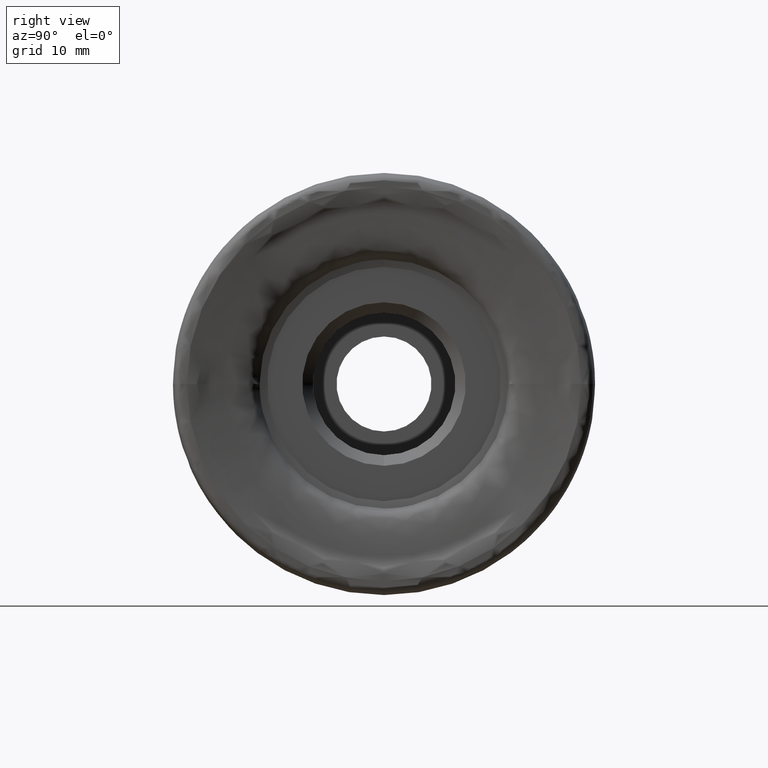
[diagram: clean part render]
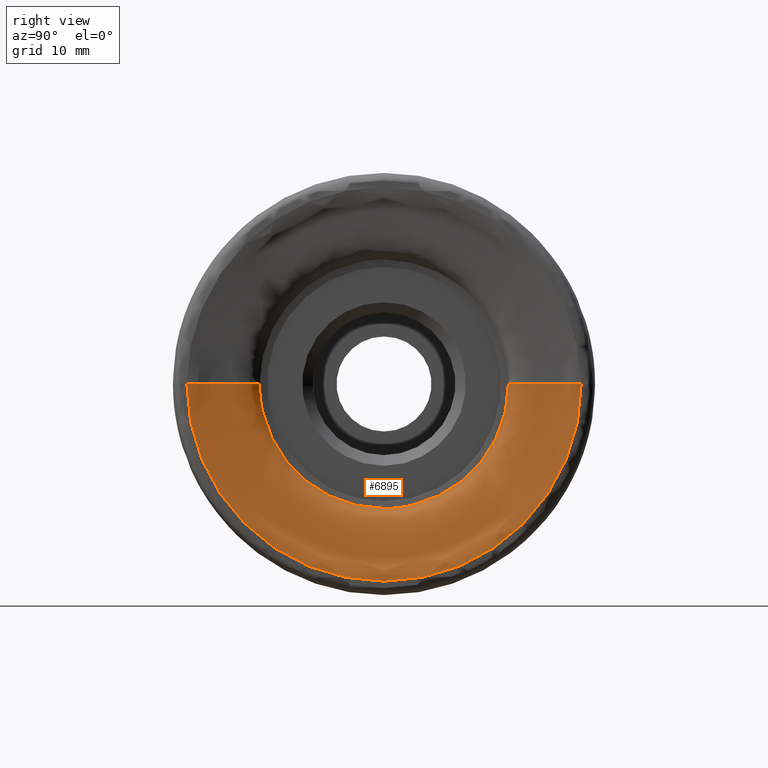
[diagram: same view with one face highlighted and labeled with its STEP entity id]
A machine part, right view. The second image highlights one B-rep face of the part: STEP entity #6895.
In plain terms, the highlighted face is a freeform B-spline surface patch.
Its self-contained STEP definition (entity closure, byte-faithful):
#1 = CARTESIAN_POINT ( 'NONE',  ( -1.233591198673778200, -11.79337000552588500, 0.0000000000000000000 ) ) ;
#4 = CARTESIAN_POINT ( 'NONE',  ( -1.233591198675447800, -11.55626464559019700, -2.352939337967846300 ) ) ;
#172 = B_SPLINE_CURVE_WITH_KNOTS ( 'NONE', 3,
 ( #2905, #2914, #2919, #2920 ),
 .UNSPECIFIED., .F., .F.,
 ( 4, 4 ),
 ( 1.309330234591956300E-016, 0.0002799919832534690400 ),
 .UNSPECIFIED. ) ;
#192 = B_SPLINE_CURVE_WITH_KNOTS ( 'NONE', 3,
 ( #2793, #2788, #2797, #2798, #2799, #2800, #2801, #2802, #2803, #2804, #2805, #2806, #2807, #2808, #2809, #2810, #2811, #2812, #2813, #2814, #2815, #2816, #2817, #2818, #2819, #2820, #2821, #2822, #2823, #2824, #2825, #2826, #2827, #2828, #2829, #2830, #2831, #2832, #2833, #2834, #2835, #2836, #2837, #2838 ),
 .UNSPECIFIED., .F., .F.,
 ( 4, 3, 1, 1, 3, 1, 1, 3, 1, 1, 3, 1, 3, 1, 1, 3, 1, 1, 3, 1, 1, 3, 3, 4 ),
 ( 0.4999999999999998900, 0.5182963854528769300, 0.5197493595014368600, 0.5212023335499969000, 0.5226553075985568300, 0.5234477109062720700, 0.5242401142139873100, 0.5250325175217024400, 0.5256676173556689100, 0.5263027171896352800, 0.5269378170236017600, 0.5311430455843155800, 0.5353492060212637900, 0.5391031500490097700, 0.5428570940767558600, 0.5466110381045018500, 0.5530631472735334500, 0.5632031253263225500, 0.5733431211058310800, 0.5830522591456142000, 0.5927613971853974400, 0.6024705352251805700, 0.6591189726774852000, 0.7575664549078574600 ),
 .UNSPECIFIED. ) ;
#205 = B_SPLINE_CURVE_WITH_KNOTS ( 'NONE', 3,
 ( #7380, #7381, #7386, #7387 ),
 .UNSPECIFIED., .F., .F.,
 ( 4, 4 ),
 ( 1.604361330255176400E-016, 0.0002799919832534824300 ),
 .UNSPECIFIED. ) ;
#259 =( BOUNDED_SURFACE ( )  B_SPLINE_SURFACE ( 3, 3, ( 
 ( #808, #816, #817, #818 ),
 ( #819, #820, #821, #822 ),
 ( #823, #824, #825, #826 ),
 ( #827, #828, #829, #830 ),
 ( #831, #832, #833, #834 ),
 ( #835, #836, #837, #838 ),
 ( #839, #840, #841, #842 ),
 ( #843, #844, #845, #846 ),
 ( #847, #848, #849, #850 ),
 ( #851, #852, #853, #854 ),
 ( #855, #856, #857, #858 ),
 ( #859, #860, #861, #862 ),
 ( #863, #864, #865, #866 ),
 ( #867, #868, #869, #870 ),
 ( #871, #872, #873, #874 ),
 ( #875, #876, #877, #878 ),
 ( #879, #880, #881, #882 ),
 ( #883, #884, #885, #886 ),
 ( #887, #888, #889, #3350 ),
 ( #890, #891, #892, #893 ),
 ( #894, #895, #896, #897 ),
 ( #898, #899, #900, #901 ),
 ( #902, #903, #904, #905 ),
 ( #906, #907, #908, #909 ),
 ( #910, #911, #912, #913 ),
 ( #914, #915, #916, #917 ),
 ( #918, #919, #920, #921 ),
 ( #922, #923, #924, #925 ),
 ( #926, #927, #928, #929 ),
 ( #930, #931, #932, #933 ),
 ( #934, #935, #936, #937 ),
 ( #938, #939, #940, #941 ),
 ( #942, #943, #944, #945 ),
 ( #946, #947, #948, #949 ),
 ( #950, #951, #952, #953 ),
 ( #954, #955, #956, #957 ),
 ( #958, #959, #960, #961 ),
 ( #962, #963, #964, #965 ),
 ( #966, #967, #968, #969 ),
 ( #970, #971, #972, #973 ),
 ( #974, #975, #976, #977 ),
 ( #978, #979, #980, #981 ),
 ( #982, #983, #984, #985 ),
 ( #986, #987, #988, #989 ) ),
 .UNSPECIFIED., .F., .F., .T. ) 
 B_SPLINE_SURFACE_WITH_KNOTS ( ( 4, 3, 1, 1, 3, 1, 1, 3, 1, 1, 3, 1, 3, 1, 1, 3, 1, 1, 3, 1, 1, 3, 3, 4 ),
 ( 4, 4 ),
 ( 0.5000000000000000000, 0.5182963854528769300, 0.5197493595014368600, 0.5212023335499969000, 0.5226553075985568300, 0.5234477109062720700, 0.5242401142139873100, 0.5250325175217024400, 0.5256676173556689100, 0.5263027171896352800, 0.5269378170236017600, 0.5311430455843155800, 0.5353492060212637900, 0.5391031500490097700, 0.5428570940767558600, 0.5466110381045018500, 0.5530631472735334500, 0.5632031253263225500, 0.5733431211058310800, 0.5830522591456142000, 0.5927613971853974400, 0.6024705352251805700, 0.6591189726774852000, 0.7665745728667404700 ),
 ( 0.0000000000000000000, 1.000000000000000000 ),
 .UNSPECIFIED. ) 
 GEOMETRIC_REPRESENTATION_ITEM ( )  RATIONAL_B_SPLINE_SURFACE ( (
 ( 1.000000000000000000, 0.3333333333333334300, 0.3333333333333334300, 1.000000000000000000),
 ( 1.000000000000000000, 0.3333333333333334300, 0.3333333333333334300, 1.000000000000000000),
 ( 1.000000000000000000, 0.3333333333333334300, 0.3333333333333334300, 1.000000000000000000),
 ( 1.000000000000000000, 0.3333333333333334300, 0.3333333333333334300, 1.000000000000000000),
 ( 1.000000000000000000, 0.3333333333333334300, 0.3333333333333334300, 1.000000000000000000),
 ( 1.000000000000000000, 0.3333333333333334300, 0.3333333333333334300, 1.000000000000000000),
 ( 1.000000000000000000, 0.3333333333333334300, 0.3333333333333334300, 1.000000000000000000),
 ( 1.000000000000000000, 0.3333333333333334300, 0.3333333333333334300, 1.000000000000000000),
 ( 1.000000000000000000, 0.3333333333333334300, 0.3333333333333334300, 1.000000000000000000),
 ( 1.000000000000000000, 0.3333333333333334300, 0.3333333333333334300, 1.000000000000000000),
 ( 1.000000000000000000, 0.3333333333333334300, 0.3333333333333334300, 1.000000000000000000),
 ( 1.000000000000000000, 0.3333333333333334300, 0.3333333333333334300, 1.000000000000000000),
 ( 1.000000000000000000, 0.3333333333333334300, 0.3333333333333334300, 1.000000000000000000),
 ( 1.000000000000000000, 0.3333333333333334300, 0.3333333333333334300, 1.000000000000000000),
 ( 1.000000000000000000, 0.3333333333333334300, 0.3333333333333334300, 1.000000000000000000),
 ( 1.000000000000000000, 0.3333333333333334300, 0.3333333333333334300, 1.000000000000000000),
 ( 1.000000000000000000, 0.3333333333333334300, 0.3333333333333334300, 1.000000000000000000),
 ( 1.000000000000000000, 0.3333333333333334300, 0.3333333333333334300, 1.000000000000000000),
 ( 1.000000000000000000, 0.3333333333333334300, 0.3333333333333334300, 1.000000000000000000),
 ( 1.000000000000000000, 0.3333333333333334300, 0.3333333333333334300, 1.000000000000000000),
 ( 1.000000000000000000, 0.3333333333333334300, 0.3333333333333334300, 1.000000000000000000),
 ( 1.000000000000000000, 0.3333333333333334300, 0.3333333333333334300, 1.000000000000000000),
 ( 1.000000000000000000, 0.3333333333333334300, 0.3333333333333334300, 1.000000000000000000),
 ( 1.000000000000000000, 0.3333333333333334300, 0.3333333333333334300, 1.000000000000000000),
 ( 1.000000000000000000, 0.3333333333333334300, 0.3333333333333334300, 1.000000000000000000),
 ( 1.000000000000000000, 0.3333333333333334300, 0.3333333333333334300, 1.000000000000000000),
 ( 1.000000000000000000, 0.3333333333333334300, 0.3333333333333334300, 1.000000000000000000),
 ( 1.000000000000000000, 0.3333333333333334300, 0.3333333333333334300, 1.000000000000000000),
 ( 1.000000000000000000, 0.3333333333333334300, 0.3333333333333334300, 1.000000000000000000),
 ( 1.000000000000000000, 0.3333333333333334300, 0.3333333333333334300, 1.000000000000000000),
 ( 1.000000000000000000, 0.3333333333333334300, 0.3333333333333334300, 1.000000000000000000),
 ( 1.000000000000000000, 0.3333333333333334300, 0.3333333333333334300, 1.000000000000000000),
 ( 1.000000000000000000, 0.3333333333333334300, 0.3333333333333334300, 1.000000000000000000),
 ( 1.000000000000000000, 0.3333333333333334300, 0.3333333333333334300, 1.000000000000000000),
 ( 1.000000000000000000, 0.3333333333333334300, 0.3333333333333334300, 1.000000000000000000),
 ( 1.000000000000000000, 0.3333333333333334300, 0.3333333333333334300, 1.000000000000000000),
 ( 1.000000000000000000, 0.3333333333333334300, 0.3333333333333334300, 1.000000000000000000),
 ( 1.000000000000000000, 0.3333333333333334300, 0.3333333333333334300, 1.000000000000000000),
 ( 1.000000000000000000, 0.3333333333333334300, 0.3333333333333334300, 1.000000000000000000),
 ( 1.000000000000000000, 0.3333333333333334300, 0.3333333333333334300, 1.000000000000000000),
 ( 1.000000000000000000, 0.3333333333333334300, 0.3333333333333334300, 1.000000000000000000),
 ( 1.000000000000000000, 0.3333333333333334300, 0.3333333333333334300, 1.000000000000000000),
 ( 1.000000000000000000, 0.3333333333333334300, 0.3333333333333334300, 1.000000000000000000),
 ( 1.000000000000000000, 0.3333333333333334300, 0.3333333333333334300, 1.000000000000000000) ) ) 
 REPRESENTATION_ITEM ( '' )  SURFACE ( )  );
#360 = B_SPLINE_CURVE_WITH_KNOTS ( 'NONE', 3,
 ( #5227, #5228, #5233, #5234 ),
 .UNSPECIFIED., .F., .F.,
 ( 4, 4 ),
 ( 0.0009774712890166701300, 0.001374410359385646600 ),
 .UNSPECIFIED. ) ;
#362 = B_SPLINE_CURVE_WITH_KNOTS ( 'NONE', 3,
 ( #7327, #7325, #7336, #7337, #7338, #7339, #7340, #7341, #7342, #7343, #7344, #7345, #7346, #7347, #7348, #7349, #7350, #7351, #7352, #7353, #7354, #7355, #7356, #7357, #7358, #7359, #7360, #7361, #7362, #7363, #7364, #7365, #7366, #7367, #7368, #7369, #7370, #7371, #7372, #7373, #7374, #7375, #7376, #7377 ),
 .UNSPECIFIED., .F., .F.,
 ( 4, 3, 1, 1, 3, 1, 1, 3, 1, 1, 3, 1, 3, 1, 1, 3, 1, 1, 3, 1, 1, 3, 3, 4 ),
 ( 0.4999999999999998900, 0.5182963854528769300, 0.5197493595014368600, 0.5212023335499969000, 0.5226553075985568300, 0.5234477109062720700, 0.5242401142139873100, 0.5250325175217024400, 0.5256676173556689100, 0.5263027171896352800, 0.5269378170236017600, 0.5311430455843155800, 0.5353492060212637900, 0.5391031500490097700, 0.5428570940767558600, 0.5466110381045018500, 0.5530631472735334500, 0.5632031253263225500, 0.5733431211058310800, 0.5830522591456142000, 0.5927613971853974400, 0.6024705352251805700, 0.6591189726774852000, 0.7575664549078574600 ),
 .UNSPECIFIED. ) ;
#388 = B_SPLINE_CURVE_WITH_KNOTS ( 'NONE', 3,
 ( #7308, #7304, #7309, #7310 ),
 .UNSPECIFIED., .F., .F.,
 ( 4, 4 ),
 ( 0.0009774712890166829200, 0.001374410359385636000 ),
 .UNSPECIFIED. ) ;
#436 = VERTEX_POINT ( 'NONE', #4620 ) ;
#442 = VERTEX_POINT ( 'NONE', #4616 ) ;
#443 = VERTEX_POINT ( 'NONE', #4619 ) ;
#444 = VERTEX_POINT ( 'NONE', #4607 ) ;
#445 = VERTEX_POINT ( 'NONE', #4618 ) ;
#446 = VERTEX_POINT ( 'NONE', #4608 ) ;
#447 = VERTEX_POINT ( 'NONE', #4612 ) ;
#448 = VERTEX_POINT ( 'NONE', #4 ) ;
#449 = VERTEX_POINT ( 'NONE', #1 ) ;
#808 = CARTESIAN_POINT ( 'NONE',  ( 0.6504350559387130900, -18.68196413547479300, 0.0000000000000000000 ) ) ;
#816 = CARTESIAN_POINT ( 'NONE',  ( 0.6504350559387130900, -18.68196413547479300, -37.36392827094957900 ) ) ;
#817 = CARTESIAN_POINT ( 'NONE',  ( 0.6504350559387085400, 18.68196413547478900, -37.36392827094957900 ) ) ;
#818 = CARTESIAN_POINT ( 'NONE',  ( 0.6504350559387085400, 18.68196413547478900, -2.287880758029485700E-015 ) ) ;
#819 = CARTESIAN_POINT ( 'NONE',  ( 0.6504350559387126500, -18.50285414027261100, 0.0000000000000000000 ) ) ;
#820 = CARTESIAN_POINT ( 'NONE',  ( 0.6504350559387126500, -18.50285414027261400, -37.00570828054521400 ) ) ;
#821 = CARTESIAN_POINT ( 'NONE',  ( 0.6504350559387079800, 18.50285414027260300, -37.00570828054520700 ) ) ;
#822 = CARTESIAN_POINT ( 'NONE',  ( 0.6504350559387081000, 18.50285414027260700, -2.265946109797520700E-015 ) ) ;
#823 = CARTESIAN_POINT ( 'NONE',  ( 0.6504350559387120900, -18.32374414507043200, 0.0000000000000000000 ) ) ;
#824 = CARTESIAN_POINT ( 'NONE',  ( 0.6504350559387120900, -18.32374414507043200, -36.64748829014085600 ) ) ;
#825 = CARTESIAN_POINT ( 'NONE',  ( 0.6504350559387076500, 18.32374414507042500, -36.64748829014084900 ) ) ;
#826 = CARTESIAN_POINT ( 'NONE',  ( 0.6504350559387076500, 18.32374414507042800, -2.244011461565555700E-015 ) ) ;
#827 = CARTESIAN_POINT ( 'NONE',  ( 0.6504350559387115400, -18.14463414986824200, 0.0000000000000000000 ) ) ;
#828 = CARTESIAN_POINT ( 'NONE',  ( 0.6504350559387115400, -18.14463414986824600, -36.28926829973647700 ) ) ;
#829 = CARTESIAN_POINT ( 'NONE',  ( 0.6504350559387071000, 18.14463414986823500, -36.28926829973647000 ) ) ;
#830 = CARTESIAN_POINT ( 'NONE',  ( 0.6504350559387071000, 18.14463414986823900, -2.222076813333589900E-015 ) ) ;
#831 = CARTESIAN_POINT ( 'NONE',  ( 0.6504350559387115400, -18.13041045658539500, 0.0000000000000000000 ) ) ;
#832 = CARTESIAN_POINT ( 'NONE',  ( 0.6504350559387115400, -18.13041045658539500, -36.26082091317078200 ) ) ;
#833 = CARTESIAN_POINT ( 'NONE',  ( 0.6504350559387071000, 18.13041045658538800, -36.26082091317077500 ) ) ;
#834 = CARTESIAN_POINT ( 'NONE',  ( 0.6504350559387071000, 18.13041045658539100, -2.220334913288500600E-015 ) ) ;
#835 = CARTESIAN_POINT ( 'NONE',  ( 0.6504350559387115400, -18.10196307001970300, 0.0000000000000000000 ) ) ;
#836 = CARTESIAN_POINT ( 'NONE',  ( 0.6504350559387115400, -18.10196307001970300, -36.20392614003940700 ) ) ;
#837 = CARTESIAN_POINT ( 'NONE',  ( 0.6504350559387071000, 18.10196307001970000, -36.20392614003940000 ) ) ;
#838 = CARTESIAN_POINT ( 'NONE',  ( 0.6504350559387071000, 18.10196307001970000, -2.216851113198322500E-015 ) ) ;
#839 = CARTESIAN_POINT ( 'NONE',  ( 0.6504350559387113200, -18.05929199017116500, 0.0000000000000000000 ) ) ;
#840 = CARTESIAN_POINT ( 'NONE',  ( 0.6504350559387113200, -18.05929199017116500, -36.11858398034232200 ) ) ;
#841 = CARTESIAN_POINT ( 'NONE',  ( 0.6504350559387069900, 18.05929199017115700, -36.11858398034231500 ) ) ;
#842 = CARTESIAN_POINT ( 'NONE',  ( 0.6504350559387068700, 18.05929199017116100, -2.211625413063055000E-015 ) ) ;
#843 = CARTESIAN_POINT ( 'NONE',  ( 0.6504350559387110900, -18.03084460360547300, 0.0000000000000000000 ) ) ;
#844 = CARTESIAN_POINT ( 'NONE',  ( 0.6504350559387112000, -18.03084460360547300, -36.06168920721093200 ) ) ;
#845 = CARTESIAN_POINT ( 'NONE',  ( 0.6504350559387066500, 18.03084460360546600, -36.06168920721093200 ) ) ;
#846 = CARTESIAN_POINT ( 'NONE',  ( 0.6504350559387066500, 18.03084460360547000, -2.208141612972876900E-015 ) ) ;
#847 = CARTESIAN_POINT ( 'NONE',  ( 0.6504350559387110900, -18.01662091032262600, 0.0000000000000000000 ) ) ;
#848 = CARTESIAN_POINT ( 'NONE',  ( 0.6504350559387112000, -18.01662091032262900, -36.03324182064524500 ) ) ;
#849 = CARTESIAN_POINT ( 'NONE',  ( 0.6504350559387066500, 18.01662091032261900, -36.03324182064523700 ) ) ;
#850 = CARTESIAN_POINT ( 'NONE',  ( 0.6504350559387066500, 18.01662091032262200, -2.206399712927787600E-015 ) ) ;
#851 = CARTESIAN_POINT ( 'NONE',  ( 0.6504350559387110900, -18.00886378512384700, 0.0000000000000000000 ) ) ;
#852 = CARTESIAN_POINT ( 'NONE',  ( 0.6504350559387112000, -18.00886378512384700, -36.01772757024768600 ) ) ;
#853 = CARTESIAN_POINT ( 'NONE',  ( 0.6504350559387066500, 18.00886378512384000, -36.01772757024767900 ) ) ;
#854 = CARTESIAN_POINT ( 'NONE',  ( 0.6504350559387066500, 18.00886378512384300, -2.205449739073260800E-015 ) ) ;
#855 = CARTESIAN_POINT ( 'NONE',  ( 0.6504350559387110900, -17.99334953472629200, 0.0000000000000000000 ) ) ;
#856 = CARTESIAN_POINT ( 'NONE',  ( 0.6504350559387112000, -17.99334953472629200, -35.98669906945258400 ) ) ;
#857 = CARTESIAN_POINT ( 'NONE',  ( 0.6504350559387066500, 17.99334953472628500, -35.98669906945257000 ) ) ;
#858 = CARTESIAN_POINT ( 'NONE',  ( 0.6504350559387066500, 17.99334953472628800, -2.203549791364207300E-015 ) ) ;
#859 = CARTESIAN_POINT ( 'NONE',  ( 0.6497161874893492300, -17.97006708500931200, 0.0000000000000000000 ) ) ;
#860 = CARTESIAN_POINT ( 'NONE',  ( 0.6497161874893492300, -17.97006708500931200, -35.94013417001860900 ) ) ;
#861 = CARTESIAN_POINT ( 'NONE',  ( 0.6497161874893447900, 17.97006708500930500, -35.94013417001860900 ) ) ;
#862 = CARTESIAN_POINT ( 'NONE',  ( 0.6497161874893447900, 17.97006708500930800, -2.200698513611986100E-015 ) ) ;
#863 = CARTESIAN_POINT ( 'NONE',  ( 0.6487590645729254300, -17.95458238671968200, 0.0000000000000000000 ) ) ;
#864 = CARTESIAN_POINT ( 'NONE',  ( 0.6487590645729254300, -17.95458238671968200, -35.90916477343935800 ) ) ;
#865 = CARTESIAN_POINT ( 'NONE',  ( 0.6487590645729211000, 17.95458238671967500, -35.90916477343935000 ) ) ;
#866 = CARTESIAN_POINT ( 'NONE',  ( 0.6487590645729211000, 17.95458238671967900, -2.198802184992369900E-015 ) ) ;
#867 = CARTESIAN_POINT ( 'NONE',  ( 0.6482805031147134100, -17.94684003757486600, 0.0000000000000000000 ) ) ;
#868 = CARTESIAN_POINT ( 'NONE',  ( 0.6482805031147134100, -17.94684003757486600, -35.89368007514972400 ) ) ;
#869 = CARTESIAN_POINT ( 'NONE',  ( 0.6482805031147090800, 17.94684003757485900, -35.89368007514971700 ) ) ;
#870 = CARTESIAN_POINT ( 'NONE',  ( 0.6482805031147090800, 17.94684003757486200, -2.197854020682562400E-015 ) ) ;
#871 = CARTESIAN_POINT ( 'NONE',  ( 0.6478969430012030400, -17.94063465628921600, 0.0000000000000000000 ) ) ;
#872 = CARTESIAN_POINT ( 'NONE',  ( 0.6478969430012030400, -17.94063465628921600, -35.88126931257841800 ) ) ;
#873 = CARTESIAN_POINT ( 'NONE',  ( 0.6478969430011987100, 17.94063465628920500, -35.88126931257841100 ) ) ;
#874 = CARTESIAN_POINT ( 'NONE',  ( 0.6478969430011987100, 17.94063465628921300, -2.197094080649666000E-015 ) ) ;
#875 = CARTESIAN_POINT ( 'NONE',  ( 0.6471298227741826300, -17.92822389371792700, 0.0000000000000000000 ) ) ;
#876 = CARTESIAN_POINT ( 'NONE',  ( 0.6471298227741826300, -17.92822389371792700, -35.85644778743584700 ) ) ;
#877 = CARTESIAN_POINT ( 'NONE',  ( 0.6471298227741783000, 17.92822389371791700, -35.85644778743583300 ) ) ;
#878 = CARTESIAN_POINT ( 'NONE',  ( 0.6471298227741783000, 17.92822389371792400, -2.195574200583875300E-015 ) ) ;
#879 = CARTESIAN_POINT ( 'NONE',  ( 0.6454507513375079600, -17.90963985146721900, 0.0000000000000000000 ) ) ;
#880 = CARTESIAN_POINT ( 'NONE',  ( 0.6454507513375079600, -17.90963985146721900, -35.81927970293443100 ) ) ;
#881 = CARTESIAN_POINT ( 'NONE',  ( 0.6454507513375035100, 17.90963985146721200, -35.81927970293442300 ) ) ;
#882 = CARTESIAN_POINT ( 'NONE',  ( 0.6454507513375036300, 17.90963985146721500, -2.193298311798120300E-015 ) ) ;
#883 = CARTESIAN_POINT ( 'NONE',  ( 0.6442040276438669700, -17.89726768753962500, 0.0000000000000000000 ) ) ;
#884 = CARTESIAN_POINT ( 'NONE',  ( 0.6442040276438669700, -17.89726768753962500, -35.79453537507924200 ) ) ;
#885 = CARTESIAN_POINT ( 'NONE',  ( 0.6442040276438627500, 17.89726768753961700, -35.79453537507923500 ) ) ;
#886 = CARTESIAN_POINT ( 'NONE',  ( 0.6442040276438626400, 17.89726768753962100, -2.191783158702874900E-015 ) ) ;
#887 = CARTESIAN_POINT ( 'NONE',  ( 0.6435328346809027200, -17.89108679963683500, 0.0000000000000000000 ) ) ;
#888 = CARTESIAN_POINT ( 'NONE',  ( 0.6435328346809027200, -17.89108679963683500, -35.78217359927366200 ) ) ;
#889 = CARTESIAN_POINT ( 'NONE',  ( 0.6435328346808983900, 17.89108679963682700, -35.78217359927365500 ) ) ;
#890 = CARTESIAN_POINT ( 'NONE',  ( 0.6390886202965244700, -17.85016087752275700, 0.0000000000000000000 ) ) ;
#891 = CARTESIAN_POINT ( 'NONE',  ( 0.6390886202965244700, -17.85016087752275400, -35.70032175504550800 ) ) ;
#892 = CARTESIAN_POINT ( 'NONE',  ( 0.6390886202965201400, 17.85016087752275000, -35.70032175504550100 ) ) ;
#893 = CARTESIAN_POINT ( 'NONE',  ( 0.6390886202965201400, 17.85016087752275400, -2.186014238292355400E-015 ) ) ;
#894 = CARTESIAN_POINT ( 'NONE',  ( 0.6263141841209263200, -17.77160569819522000, 0.0000000000000000000 ) ) ;
#895 = CARTESIAN_POINT ( 'NONE',  ( 0.6263141841209262100, -17.77160569819522000, -35.54321139639043300 ) ) ;
#896 = CARTESIAN_POINT ( 'NONE',  ( 0.6263141841209218800, 17.77160569819521300, -35.54321139639042600 ) ) ;
#897 = CARTESIAN_POINT ( 'NONE',  ( 0.6263141841209219900, 17.77160569819521600, -2.176394003400363900E-015 ) ) ;
#898 = CARTESIAN_POINT ( 'NONE',  ( 0.6081853808705159900, -17.70394537036092000, 0.0000000000000000000 ) ) ;
#899 = CARTESIAN_POINT ( 'NONE',  ( 0.6081853808705159900, -17.70394537036092300, -35.40789074072184000 ) ) ;
#900 = CARTESIAN_POINT ( 'NONE',  ( 0.6081853808705116600, 17.70394537036091300, -35.40789074072182500 ) ) ;
#901 = CARTESIAN_POINT ( 'NONE',  ( 0.6081853808705116600, 17.70394537036091600, -2.168108003009210500E-015 ) ) ;
#902 = CARTESIAN_POINT ( 'NONE',  ( 0.5989395239877823900, -17.67331326093324900, 0.0000000000000000000 ) ) ;
#903 = CARTESIAN_POINT ( 'NONE',  ( 0.5989395239877823900, -17.67331326093324900, -35.34662652186649700 ) ) ;
#904 = CARTESIAN_POINT ( 'NONE',  ( 0.5989395239877780600, 17.67331326093324500, -35.34662652186649000 ) ) ;
#905 = CARTESIAN_POINT ( 'NONE',  ( 0.5989395239877780600, 17.67331326093324500, -2.164356651533037700E-015 ) ) ;
#906 = CARTESIAN_POINT ( 'NONE',  ( 0.5906877157780741100, -17.64597449771628500, 0.0000000000000000000 ) ) ;
#907 = CARTESIAN_POINT ( 'NONE',  ( 0.5906877157780741100, -17.64597449771628100, -35.29194899543256300 ) ) ;
#908 = CARTESIAN_POINT ( 'NONE',  ( 0.5906877157780697800, 17.64597449771627400, -35.29194899543254800 ) ) ;
#909 = CARTESIAN_POINT ( 'NONE',  ( 0.5906877157780697800, 17.64597449771628100, -2.161008618646406800E-015 ) ) ;
#910 = CARTESIAN_POINT ( 'NONE',  ( 0.5725096147751562700, -17.59180239010921200, 0.0000000000000000000 ) ) ;
#911 = CARTESIAN_POINT ( 'NONE',  ( 0.5725096147751562700, -17.59180239010921200, -35.18360478021841700 ) ) ;
#912 = CARTESIAN_POINT ( 'NONE',  ( 0.5725096147751518300, 17.59180239010920800, -35.18360478021841700 ) ) ;
#913 = CARTESIAN_POINT ( 'NONE',  ( 0.5725096147751519400, 17.59180239010920800, -2.154374448828000700E-015 ) ) ;
#914 = CARTESIAN_POINT ( 'NONE',  ( 0.5345146610763174000, -17.51394227399099200, 0.0000000000000000000 ) ) ;
#915 = CARTESIAN_POINT ( 'NONE',  ( 0.5345146610763174000, -17.51394227399099200, -35.02788454798197600 ) ) ;
#916 = CARTESIAN_POINT ( 'NONE',  ( 0.5345146610763131800, 17.51394227399098500, -35.02788454798196900 ) ) ;
#917 = CARTESIAN_POINT ( 'NONE',  ( 0.5345146610763131800, 17.51394227399098800, -2.144839334629458300E-015 ) ) ;
#918 = CARTESIAN_POINT ( 'NONE',  ( 0.5055755507518490100, -17.46469053754758600, 0.0000000000000000000 ) ) ;
#919 = CARTESIAN_POINT ( 'NONE',  ( 0.5055755507518491200, -17.46469053754758200, -34.92938107509516500 ) ) ;
#920 = CARTESIAN_POINT ( 'NONE',  ( 0.5055755507518447900, 17.46469053754757500, -34.92938107509515100 ) ) ;
#921 = CARTESIAN_POINT ( 'NONE',  ( 0.5055755507518447900, 17.46469053754758200, -2.138807736490671600E-015 ) ) ;
#922 = CARTESIAN_POINT ( 'NONE',  ( 0.4915843501197076400, -17.43979582690787600, 0.0000000000000000000 ) ) ;
#923 = CARTESIAN_POINT ( 'NONE',  ( 0.4915843501197076900, -17.43979582690787600, -34.87959165381574400 ) ) ;
#924 = CARTESIAN_POINT ( 'NONE',  ( 0.4915843501197034200, 17.43979582690786900, -34.87959165381573700 ) ) ;
#925 = CARTESIAN_POINT ( 'NONE',  ( 0.4915843501197034200, 17.43979582690787200, -2.135759013720609600E-015 ) ) ;
#926 = CARTESIAN_POINT ( 'NONE',  ( 0.4675369074255323300, -17.39700792448001500, 0.0000000000000000000 ) ) ;
#927 = CARTESIAN_POINT ( 'NONE',  ( 0.4675369074255323300, -17.39700792448001500, -34.79401584896002200 ) ) ;
#928 = CARTESIAN_POINT ( 'NONE',  ( 0.4675369074255281100, 17.39700792448000800, -34.79401584896001500 ) ) ;
#929 = CARTESIAN_POINT ( 'NONE',  ( 0.4675369074255281100, 17.39700792448001100, -2.130519006945558900E-015 ) ) ;
#930 = CARTESIAN_POINT ( 'NONE',  ( 0.4053649258149260000, -17.27787634632545600, 0.0000000000000000000 ) ) ;
#931 = CARTESIAN_POINT ( 'NONE',  ( 0.4053649258149259500, -17.27787634632545600, -34.55575269265090600 ) ) ;
#932 = CARTESIAN_POINT ( 'NONE',  ( 0.4053649258149217300, 17.27787634632544600, -34.55575269265089100 ) ) ;
#933 = CARTESIAN_POINT ( 'NONE',  ( 0.4053649258149217800, 17.27787634632545300, -2.115929596359123400E-015 ) ) ;
#934 = CARTESIAN_POINT ( 'NONE',  ( 0.3135109685994723600, -17.05143420601389400, 0.0000000000000000000 ) ) ;
#935 = CARTESIAN_POINT ( 'NONE',  ( 0.3135109685994723600, -17.05143420601389400, -34.10286841202778200 ) ) ;
#936 = CARTESIAN_POINT ( 'NONE',  ( 0.3135109685994682000, 17.05143420601388700, -34.10286841202777500 ) ) ;
#937 = CARTESIAN_POINT ( 'NONE',  ( 0.3135109685994682000, 17.05143420601389100, -2.088198432126660700E-015 ) ) ;
#938 = CARTESIAN_POINT ( 'NONE',  ( 0.2615554873300321400, -16.85537674221547300, 0.0000000000000000000 ) ) ;
#939 = CARTESIAN_POINT ( 'NONE',  ( 0.2615554873300321400, -16.85537674221546900, -33.71075348443093100 ) ) ;
#940 = CARTESIAN_POINT ( 'NONE',  ( 0.2615554873300279800, 16.85537674221546600, -33.71075348443093100 ) ) ;
#941 = CARTESIAN_POINT ( 'NONE',  ( 0.2615554873300280400, 16.85537674221546900, -2.064188317577691800E-015 ) ) ;
#942 = CARTESIAN_POINT ( 'NONE',  ( 0.2414895606606694800, -16.75397898580411400, 0.0000000000000000000 ) ) ;
#943 = CARTESIAN_POINT ( 'NONE',  ( 0.2414895606606694600, -16.75397898580411400, -33.50795797160822100 ) ) ;
#944 = CARTESIAN_POINT ( 'NONE',  ( 0.2414895606606654300, 16.75397898580410700, -33.50795797160821400 ) ) ;
#945 = CARTESIAN_POINT ( 'NONE',  ( 0.2414895606606653800, 16.75397898580411000, -2.051770673794702700E-015 ) ) ;
#946 = CARTESIAN_POINT ( 'NONE',  ( 0.2222763756162499900, -16.65689021824903900, 0.0000000000000000000 ) ) ;
#947 = CARTESIAN_POINT ( 'NONE',  ( 0.2222763756162500200, -16.65689021824903900, -33.31378043649806400 ) ) ;
#948 = CARTESIAN_POINT ( 'NONE',  ( 0.2222763756162459400, 16.65689021824903200, -33.31378043649806400 ) ) ;
#949 = CARTESIAN_POINT ( 'NONE',  ( 0.2222763756162459400, 16.65689021824903500, -2.039880728952754200E-015 ) ) ;
#950 = CARTESIAN_POINT ( 'NONE',  ( 0.1954580970098516700, -16.46041552338207800, 0.0000000000000000000 ) ) ;
#951 = CARTESIAN_POINT ( 'NONE',  ( 0.1954580970098516700, -16.46041552338208200, -32.92083104676415000 ) ) ;
#952 = CARTESIAN_POINT ( 'NONE',  ( 0.1954580970098476800, 16.46041552338207100, -32.92083104676414300 ) ) ;
#953 = CARTESIAN_POINT ( 'NONE',  ( 0.1954580970098476800, 16.46041552338207500, -2.015819518334527100E-015 ) ) ;
#954 = CARTESIAN_POINT ( 'NONE',  ( 0.1786697879622818100, -16.16338149310819400, 0.0000000000000000000 ) ) ;
#955 = CARTESIAN_POINT ( 'NONE',  ( 0.1786697879622818100, -16.16338149310819400, -32.32676298621638000 ) ) ;
#956 = CARTESIAN_POINT ( 'NONE',  ( 0.1786697879622778400, 16.16338149310818700, -32.32676298621637300 ) ) ;
#957 = CARTESIAN_POINT ( 'NONE',  ( 0.1786697879622778400, 16.16338149310819000, -1.979443340893251500E-015 ) ) ;
#958 = CARTESIAN_POINT ( 'NONE',  ( 0.1639845708107593700, -15.96598380959374300, 0.0000000000000000000 ) ) ;
#959 = CARTESIAN_POINT ( 'NONE',  ( 0.1639845708107593700, -15.96598380959374100, -31.93196761918747500 ) ) ;
#960 = CARTESIAN_POINT ( 'NONE',  ( 0.1639845708107554900, 15.96598380959373700, -31.93196761918747500 ) ) ;
#961 = CARTESIAN_POINT ( 'NONE',  ( 0.1639845708107554900, 15.96598380959373900, -1.955269096765743700E-015 ) ) ;
#962 = CARTESIAN_POINT ( 'NONE',  ( 0.1566419622349981800, -15.86728496783651500, 0.0000000000000000000 ) ) ;
#963 = CARTESIAN_POINT ( 'NONE',  ( 0.1566419622349981800, -15.86728496783651500, -31.73456993567302600 ) ) ;
#964 = CARTESIAN_POINT ( 'NONE',  ( 0.1566419622349942700, 15.86728496783650800, -31.73456993567301500 ) ) ;
#965 = CARTESIAN_POINT ( 'NONE',  ( 0.1566419622349943000, 15.86728496783651100, -1.943181974701990200E-015 ) ) ;
#966 = CARTESIAN_POINT ( 'NONE',  ( 0.1138011558795398200, -15.29142178193993300, 0.0000000000000000000 ) ) ;
#967 = CARTESIAN_POINT ( 'NONE',  ( 0.1138011558795398200, -15.29142178193993100, -30.58284356387985200 ) ) ;
#968 = CARTESIAN_POINT ( 'NONE',  ( 0.1138011558795360700, 15.29142178193992600, -30.58284356387985900 ) ) ;
#969 = CARTESIAN_POINT ( 'NONE',  ( 0.1138011558795360700, 15.29142178193993100, -1.872659073966485400E-015 ) ) ;
#970 = CARTESIAN_POINT ( 'NONE',  ( 0.07096034952408145100, -14.71555859604334400, 0.0000000000000000000 ) ) ;
#971 = CARTESIAN_POINT ( 'NONE',  ( 0.07096034952408145100, -14.71555859604334600, -29.43111719208668100 ) ) ;
#972 = CARTESIAN_POINT ( 'NONE',  ( 0.07096034952407787000, 14.71555859604334100, -29.43111719208668500 ) ) ;
#973 = CARTESIAN_POINT ( 'NONE',  ( 0.07096034952407787000, 14.71555859604334400, -1.802136173230980200E-015 ) ) ;
#974 = CARTESIAN_POINT ( 'NONE',  ( 0.02811954316862320300, -14.13969541014676400, 0.0000000000000000000 ) ) ;
#975 = CARTESIAN_POINT ( 'NONE',  ( 0.02811954316862320600, -14.13969541014676400, -28.27939082029351800 ) ) ;
#976 = CARTESIAN_POINT ( 'NONE',  ( 0.02811954316861975000, 14.13969541014675900, -28.27939082029351800 ) ) ;
#977 = CARTESIAN_POINT ( 'NONE',  ( 0.02811954316861974700, 14.13969541014676200, -1.731613272495475400E-015 ) ) ;
#978 = CARTESIAN_POINT ( 'NONE',  ( -0.05314456166027605600, -13.04734887685511200, 0.0000000000000000000 ) ) ;
#979 = CARTESIAN_POINT ( 'NONE',  ( -0.05314456166027604200, -13.04734887685511400, -26.09469775371021800 ) ) ;
#980 = CARTESIAN_POINT ( 'NONE',  ( -0.05314456166027924100, 13.04734887685510900, -26.09469775371021800 ) ) ;
#981 = CARTESIAN_POINT ( 'NONE',  ( -0.05314456166027924100, 13.04734887685511100, -1.597839403939942800E-015 ) ) ;
#982 = CARTESIAN_POINT ( 'NONE',  ( -0.1344086664891752700, -11.95500234356346200, 0.0000000000000000000 ) ) ;
#983 = CARTESIAN_POINT ( 'NONE',  ( -0.1344086664891752700, -11.95500234356346200, -23.91000468712691400 ) ) ;
#984 = CARTESIAN_POINT ( 'NONE',  ( -0.1344086664891782100, 11.95500234356345700, -23.91000468712691800 ) ) ;
#985 = CARTESIAN_POINT ( 'NONE',  ( -0.1344086664891782100, 11.95500234356346100, -1.464065535384409700E-015 ) ) ;
#986 = CARTESIAN_POINT ( 'NONE',  ( -1.565939336844982500, -11.71570645718664300, 0.0000000000000000000 ) ) ;
#987 = CARTESIAN_POINT ( 'NONE',  ( -1.565939336844982800, -11.71570645718664300, -23.43141291437327900 ) ) ;
#988 = CARTESIAN_POINT ( 'NONE',  ( -1.565939336844985400, 11.71570645718663800, -23.43141291437328300 ) ) ;
#989 = CARTESIAN_POINT ( 'NONE',  ( -1.565939336844985400, 11.71570645718664100, -1.434760241254359900E-015 ) ) ;
#1527 = AXIS2_PLACEMENT_3D ( 'NONE', #2368, #2369, #2370 ) ;
#1535 = AXIS2_PLACEMENT_3D ( 'NONE', #2718, #2719, #2720 ) ;
#1771 = ORIENTED_EDGE ( 'NONE', *, *, #8651, .T. ) ;
#1781 = ORIENTED_EDGE ( 'NONE', *, *, #4007, .T. ) ;
#1783 = ORIENTED_EDGE ( 'NONE', *, *, #3999, .T. ) ;
#1835 = CIRCLE ( 'NONE', #1527, 11.79337000552588300 ) ;
#1860 = CIRCLE ( 'NONE', #1535, 11.79337000552588300 ) ;
#2368 = CARTESIAN_POINT ( 'NONE',  ( -1.233591198673779800, -1.276635536330889600E-015, 0.0000000000000000000 ) ) ;
#2369 = DIRECTION ( 'NONE',  ( -1.000000000000000000, -1.222035470961051100E-016, 0.0000000000000000000 ) ) ;
#2370 = DIRECTION ( 'NONE',  ( -1.287064715826340900E-016, 1.000000000000000000, 0.0000000000000000000 ) ) ;
#2400 = ORIENTED_EDGE ( 'NONE', *, *, #8713, .T. ) ;
#2402 = ORIENTED_EDGE ( 'NONE', *, *, #8728, .T. ) ;
#2407 = ORIENTED_EDGE ( 'NONE', *, *, #3903, .F. ) ;
#2440 = ORIENTED_EDGE ( 'NONE', *, *, #3874, .T. ) ;
#2446 = ORIENTED_EDGE ( 'NONE', *, *, #3897, .T. ) ;
#2454 = ORIENTED_EDGE ( 'NONE', *, *, #8690, .T. ) ;
#2463 = ORIENTED_EDGE ( 'NONE', *, *, #3906, .T. ) ;
#2464 = ORIENTED_EDGE ( 'NONE', *, *, #3905, .T. ) ;
#2718 = CARTESIAN_POINT ( 'NONE',  ( -1.233591198673779800, -1.276635536330889600E-015, 0.0000000000000000000 ) ) ;
#2719 = DIRECTION ( 'NONE',  ( -1.000000000000000000, -1.222035470961051100E-016, 0.0000000000000000000 ) ) ;
#2720 = DIRECTION ( 'NONE',  ( -1.287064715826340900E-016, 1.000000000000000000, 0.0000000000000000000 ) ) ;
#2788 = CARTESIAN_POINT ( 'NONE',  ( 0.6504350559387081000, 18.50285414027260700, -2.265946109797520700E-015 ) ) ;
#2793 = CARTESIAN_POINT ( 'NONE',  ( 0.6504350559387093200, 18.68196413547479300, -2.287880758029485300E-015 ) ) ;
#2797 = CARTESIAN_POINT ( 'NONE',  ( 0.6504350559387076500, 18.32374414507042500, -2.244011461565555300E-015 ) ) ;
#2798 = CARTESIAN_POINT ( 'NONE',  ( 0.6504350559387071000, 18.14463414986823900, -2.222076813333589900E-015 ) ) ;
#2799 = CARTESIAN_POINT ( 'NONE',  ( 0.6504350559387071000, 18.13041045658539100, -2.220334913288500600E-015 ) ) ;
#2800 = CARTESIAN_POINT ( 'NONE',  ( 0.6504350559387071000, 18.10196307001970000, -2.216851113198322500E-015 ) ) ;
#2801 = CARTESIAN_POINT ( 'NONE',  ( 0.6504350559387068700, 18.05929199017116100, -2.211625413063055000E-015 ) ) ;
#2802 = CARTESIAN_POINT ( 'NONE',  ( 0.6504350559387066500, 18.03084460360547000, -2.208141612972876900E-015 ) ) ;
#2803 = CARTESIAN_POINT ( 'NONE',  ( 0.6504350559387066500, 18.01662091032262200, -2.206399712927787600E-015 ) ) ;
#2804 = CARTESIAN_POINT ( 'NONE',  ( 0.6504350559387066500, 18.00886378512384300, -2.205449739073260800E-015 ) ) ;
#2805 = CARTESIAN_POINT ( 'NONE',  ( 0.6504350559387066500, 17.99334953472628800, -2.203549791364207300E-015 ) ) ;
#2806 = CARTESIAN_POINT ( 'NONE',  ( 0.6497161874893447900, 17.97006708500930800, -2.200698513611986100E-015 ) ) ;
#2807 = CARTESIAN_POINT ( 'NONE',  ( 0.6487590645729211000, 17.95458238671967900, -2.198802184992369900E-015 ) ) ;
#2808 = CARTESIAN_POINT ( 'NONE',  ( 0.6482805031147090800, 17.94684003757486200, -2.197854020682562400E-015 ) ) ;
#2809 = CARTESIAN_POINT ( 'NONE',  ( 0.6478969430011987100, 17.94063465628921300, -2.197094080649666000E-015 ) ) ;
#2810 = CARTESIAN_POINT ( 'NONE',  ( 0.6471298227741783000, 17.92822389371792400, -2.195574200583875300E-015 ) ) ;
#2811 = CARTESIAN_POINT ( 'NONE',  ( 0.6454507513375036300, 17.90963985146721500, -2.193298311798120300E-015 ) ) ;
#2812 = CARTESIAN_POINT ( 'NONE',  ( 0.6442040276438626400, 17.89726768753962100, -2.191783158702874900E-015 ) ) ;
#2813 = CARTESIAN_POINT ( 'NONE',  ( 0.6435328346808983900, 17.89108679963683100, -2.191026218244270900E-015 ) ) ;
#2814 = CARTESIAN_POINT ( 'NONE',  ( 0.6390886202965201400, 17.85016087752275400, -2.186014238292355400E-015 ) ) ;
#2815 = CARTESIAN_POINT ( 'NONE',  ( 0.6263141841209219900, 17.77160569819521600, -2.176394003400363900E-015 ) ) ;
#2816 = CARTESIAN_POINT ( 'NONE',  ( 0.6081853808705116600, 17.70394537036091600, -2.168108003009210500E-015 ) ) ;
#2817 = CARTESIAN_POINT ( 'NONE',  ( 0.5989395239877780600, 17.67331326093324500, -2.164356651533037700E-015 ) ) ;
#2818 = CARTESIAN_POINT ( 'NONE',  ( 0.5906877157780697800, 17.64597449771628100, -2.161008618646406800E-015 ) ) ;
#2819 = CARTESIAN_POINT ( 'NONE',  ( 0.5725096147751519400, 17.59180239010920800, -2.154374448828000700E-015 ) ) ;
#2820 = CARTESIAN_POINT ( 'NONE',  ( 0.5345146610763131800, 17.51394227399098800, -2.144839334629458300E-015 ) ) ;
#2821 = CARTESIAN_POINT ( 'NONE',  ( 0.5055755507518447900, 17.46469053754758200, -2.138807736490671600E-015 ) ) ;
#2822 = CARTESIAN_POINT ( 'NONE',  ( 0.4915843501197034200, 17.43979582690787200, -2.135759013720609600E-015 ) ) ;
#2823 = CARTESIAN_POINT ( 'NONE',  ( 0.4675369074255281100, 17.39700792448001100, -2.130519006945558900E-015 ) ) ;
#2824 = CARTESIAN_POINT ( 'NONE',  ( 0.4053649258149217800, 17.27787634632545300, -2.115929596359123400E-015 ) ) ;
#2825 = CARTESIAN_POINT ( 'NONE',  ( 0.3135109685994682000, 17.05143420601389100, -2.088198432126660700E-015 ) ) ;
#2826 = CARTESIAN_POINT ( 'NONE',  ( 0.2615554873300280400, 16.85537674221546900, -2.064188317577691800E-015 ) ) ;
#2827 = CARTESIAN_POINT ( 'NONE',  ( 0.2414895606606653800, 16.75397898580411000, -2.051770673794702700E-015 ) ) ;
#2828 = CARTESIAN_POINT ( 'NONE',  ( 0.2222763756162459400, 16.65689021824903500, -2.039880728952754200E-015 ) ) ;
#2829 = CARTESIAN_POINT ( 'NONE',  ( 0.1954580970098476800, 16.46041552338207500, -2.015819518334527100E-015 ) ) ;
#2830 = CARTESIAN_POINT ( 'NONE',  ( 0.1786697879622778400, 16.16338149310819000, -1.979443340893251500E-015 ) ) ;
#2831 = CARTESIAN_POINT ( 'NONE',  ( 0.1639845708107554900, 15.96598380959373900, -1.955269096765743700E-015 ) ) ;
#2832 = CARTESIAN_POINT ( 'NONE',  ( 0.1566419622349943000, 15.86728496783651100, -1.943181974701990200E-015 ) ) ;
#2833 = CARTESIAN_POINT ( 'NONE',  ( 0.1138011558795360700, 15.29142178193993100, -1.872659073966485400E-015 ) ) ;
#2834 = CARTESIAN_POINT ( 'NONE',  ( 0.07096034952407787000, 14.71555859604334400, -1.802136173230980200E-015 ) ) ;
#2835 = CARTESIAN_POINT ( 'NONE',  ( 0.02811954316861974700, 14.13969541014676200, -1.731613272495475400E-015 ) ) ;
#2836 = CARTESIAN_POINT ( 'NONE',  ( -0.04633210478662665900, 13.13892145572989800, -1.609053810500810000E-015 ) ) ;
#2837 = CARTESIAN_POINT ( 'NONE',  ( -0.1207837527418730200, 12.13814750131303600, -1.486494348506145000E-015 ) ) ;
#2838 = CARTESIAN_POINT ( 'NONE',  ( -1.233591198673781300, 11.79337000552588100, -1.444271282842975100E-015 ) ) ;
#2905 = CARTESIAN_POINT ( 'NONE',  ( -1.503279184388399200, 2.295615387001026500, -11.49999999999999800 ) ) ;
#2914 = CARTESIAN_POINT ( 'NONE',  ( -1.411884416145215100, 2.315041944693424700, -11.51382282630078500 ) ) ;
#2919 = CARTESIAN_POINT ( 'NONE',  ( -1.321865750083835800, 2.334176002837551300, -11.53217403174648000 ) ) ;
#2920 = CARTESIAN_POINT ( 'NONE',  ( -1.233591198675446900, 2.352939337967886200, -11.55626464559019300 ) ) ;
#3103 = FACE_OUTER_BOUND ( 'NONE', #8137, .T. ) ;
#3350 = CARTESIAN_POINT ( 'NONE',  ( 0.6435328346808983900, 17.89108679963683100, -2.191026218244270900E-015 ) ) ;
#3874 = EDGE_CURVE ( 'NONE', #445, #446, #6106, .T. ) ;
#3897 = EDGE_CURVE ( 'NONE', #446, #447, #388, .T. ) ;
#3903 = EDGE_CURVE ( 'NONE', #5876, #449, #362, .T. ) ;
#3905 = EDGE_CURVE ( 'NONE', #448, #449, #7546, .T. ) ;
#3906 = EDGE_CURVE ( 'NONE', #447, #448, #205, .T. ) ;
#3999 = EDGE_CURVE ( 'NONE', #5876, #5879, #7626, .T. ) ;
#4007 = EDGE_CURVE ( 'NONE', #442, #443, #360, .T. ) ;
#4144 = CARTESIAN_POINT ( 'NONE',  ( -1.233591198673779800, -1.276635536330889600E-015, 0.0000000000000000000 ) ) ;
#4145 = DIRECTION ( 'NONE',  ( -1.000000000000000000, -1.222035470961051100E-016, 0.0000000000000000000 ) ) ;
#4146 = DIRECTION ( 'NONE',  ( -1.287064715826340900E-016, 1.000000000000000000, 0.0000000000000000000 ) ) ;
#4540 = AXIS2_PLACEMENT_3D ( 'NONE', #5184, #5185, #5186 ) ;
#4607 = CARTESIAN_POINT ( 'NONE',  ( -1.233591198675446900, 2.352939337967886200, -11.55626464559019300 ) ) ;
#4608 = CARTESIAN_POINT ( 'NONE',  ( -1.233591198674428800, -11.50539224482036500, -2.590275155268638500 ) ) ;
#4612 = CARTESIAN_POINT ( 'NONE',  ( -1.503279184388384600, -11.50000000000000500, -2.295615387000989700 ) ) ;
#4616 = CARTESIAN_POINT ( 'NONE',  ( -1.233591198674428600, 2.590275155268694000, -11.50539224482035600 ) ) ;
#4618 = CARTESIAN_POINT ( 'NONE',  ( -1.233591198673779800, 0.0000000000000000000, -11.79337000552591700 ) ) ;
#4619 = CARTESIAN_POINT ( 'NONE',  ( -1.503279184388399200, 2.295615387001026500, -11.49999999999999800 ) ) ;
#4620 = CARTESIAN_POINT ( 'NONE',  ( -1.233591198673781300, 11.79337000552588100, -1.444271282842975100E-015 ) ) ;
#4693 = AXIS2_PLACEMENT_3D ( 'NONE', #4144, #4145, #4146 ) ;
#4710 = AXIS2_PLACEMENT_3D ( 'NONE', #7382, #7383, #7384 ) ;
#5184 = CARTESIAN_POINT ( 'NONE',  ( 0.6504350559387115400, -1.046400845195053600E-015, 0.0000000000000000000 ) ) ;
#5185 = DIRECTION ( 'NONE',  ( 1.000000000000000000, 1.222035470961051100E-016, -0.0000000000000000000 ) ) ;
#5186 = DIRECTION ( 'NONE',  ( 8.124857913614285100E-017, -1.000000000000000000, 0.0000000000000000000 ) ) ;
#5227 = CARTESIAN_POINT ( 'NONE',  ( -1.233591198674428600, 2.590275155268694000, -11.50539224482035600 ) ) ;
#5228 = CARTESIAN_POINT ( 'NONE',  ( -1.318031278073700000, 2.488159049671122300, -11.50156561258170600 ) ) ;
#5233 = CARTESIAN_POINT ( 'NONE',  ( -1.406879444111353900, 2.389143989424446600, -11.49999999999991300 ) ) ;
#5234 = CARTESIAN_POINT ( 'NONE',  ( -1.503279184388399200, 2.295615387001026500, -11.49999999999999800 ) ) ;
#5876 = VERTEX_POINT ( 'NONE', #6553 ) ;
#5879 = VERTEX_POINT ( 'NONE', #6554 ) ;
#6106 = CIRCLE ( 'NONE', #4693, 11.79337000552588300 ) ;
#6553 = CARTESIAN_POINT ( 'NONE',  ( 0.6504350559387138700, -18.68196413547479300, 0.0000000000000000000 ) ) ;
#6554 = CARTESIAN_POINT ( 'NONE',  ( 0.6504350559387093200, 18.68196413547479300, -2.287880758029485300E-015 ) ) ;
#6895 = ADVANCED_FACE ( 'NONE', ( #3103 ), #259, .F. ) ;
#7304 = CARTESIAN_POINT ( 'NONE',  ( -1.318031278073709300, -11.50156561258171500, -2.488159049671079700 ) ) ;
#7308 = CARTESIAN_POINT ( 'NONE',  ( -1.233591198674428800, -11.50539224482036500, -2.590275155268638500 ) ) ;
#7309 = CARTESIAN_POINT ( 'NONE',  ( -1.406879444111368600, -11.49999999999991800, -2.389143989424416000 ) ) ;
#7310 = CARTESIAN_POINT ( 'NONE',  ( -1.503279184388384600, -11.50000000000000500, -2.295615387000989700 ) ) ;
#7325 = CARTESIAN_POINT ( 'NONE',  ( 0.6504350559387126500, -18.50285414027261400, 0.0000000000000000000 ) ) ;
#7327 = CARTESIAN_POINT ( 'NONE',  ( 0.6504350559387138700, -18.68196413547479300, 0.0000000000000000000 ) ) ;
#7336 = CARTESIAN_POINT ( 'NONE',  ( 0.6504350559387120900, -18.32374414507043200, 0.0000000000000000000 ) ) ;
#7337 = CARTESIAN_POINT ( 'NONE',  ( 0.6504350559387115400, -18.14463414986824200, 0.0000000000000000000 ) ) ;
#7338 = CARTESIAN_POINT ( 'NONE',  ( 0.6504350559387115400, -18.13041045658539500, 0.0000000000000000000 ) ) ;
#7339 = CARTESIAN_POINT ( 'NONE',  ( 0.6504350559387115400, -18.10196307001970300, 0.0000000000000000000 ) ) ;
#7340 = CARTESIAN_POINT ( 'NONE',  ( 0.6504350559387113200, -18.05929199017116500, 0.0000000000000000000 ) ) ;
#7341 = CARTESIAN_POINT ( 'NONE',  ( 0.6504350559387110900, -18.03084460360547300, 0.0000000000000000000 ) ) ;
#7342 = CARTESIAN_POINT ( 'NONE',  ( 0.6504350559387110900, -18.01662091032262600, 0.0000000000000000000 ) ) ;
#7343 = CARTESIAN_POINT ( 'NONE',  ( 0.6504350559387110900, -18.00886378512384700, 0.0000000000000000000 ) ) ;
#7344 = CARTESIAN_POINT ( 'NONE',  ( 0.6504350559387110900, -17.99334953472629200, 0.0000000000000000000 ) ) ;
#7345 = CARTESIAN_POINT ( 'NONE',  ( 0.6497161874893492300, -17.97006708500931200, 0.0000000000000000000 ) ) ;
#7346 = CARTESIAN_POINT ( 'NONE',  ( 0.6487590645729254300, -17.95458238671968200, 0.0000000000000000000 ) ) ;
#7347 = CARTESIAN_POINT ( 'NONE',  ( 0.6482805031147134100, -17.94684003757486600, 0.0000000000000000000 ) ) ;
#7348 = CARTESIAN_POINT ( 'NONE',  ( 0.6478969430012030400, -17.94063465628921600, 0.0000000000000000000 ) ) ;
#7349 = CARTESIAN_POINT ( 'NONE',  ( 0.6471298227741826300, -17.92822389371792700, 0.0000000000000000000 ) ) ;
#7350 = CARTESIAN_POINT ( 'NONE',  ( 0.6454507513375079600, -17.90963985146721900, 0.0000000000000000000 ) ) ;
#7351 = CARTESIAN_POINT ( 'NONE',  ( 0.6442040276438669700, -17.89726768753962500, 0.0000000000000000000 ) ) ;
#7352 = CARTESIAN_POINT ( 'NONE',  ( 0.6435328346809027200, -17.89108679963683500, 0.0000000000000000000 ) ) ;
#7353 = CARTESIAN_POINT ( 'NONE',  ( 0.6390886202965244700, -17.85016087752275700, 0.0000000000000000000 ) ) ;
#7354 = CARTESIAN_POINT ( 'NONE',  ( 0.6263141841209263200, -17.77160569819522000, 0.0000000000000000000 ) ) ;
#7355 = CARTESIAN_POINT ( 'NONE',  ( 0.6081853808705159900, -17.70394537036092000, 0.0000000000000000000 ) ) ;
#7356 = CARTESIAN_POINT ( 'NONE',  ( 0.5989395239877823900, -17.67331326093324900, 0.0000000000000000000 ) ) ;
#7357 = CARTESIAN_POINT ( 'NONE',  ( 0.5906877157780741100, -17.64597449771628500, 0.0000000000000000000 ) ) ;
#7358 = CARTESIAN_POINT ( 'NONE',  ( 0.5725096147751562700, -17.59180239010921200, 0.0000000000000000000 ) ) ;
#7359 = CARTESIAN_POINT ( 'NONE',  ( 0.5345146610763174000, -17.51394227399099200, 0.0000000000000000000 ) ) ;
#7360 = CARTESIAN_POINT ( 'NONE',  ( 0.5055755507518490100, -17.46469053754758600, 0.0000000000000000000 ) ) ;
#7361 = CARTESIAN_POINT ( 'NONE',  ( 0.4915843501197076400, -17.43979582690787600, 0.0000000000000000000 ) ) ;
#7362 = CARTESIAN_POINT ( 'NONE',  ( 0.4675369074255323300, -17.39700792448001500, 0.0000000000000000000 ) ) ;
#7363 = CARTESIAN_POINT ( 'NONE',  ( 0.4053649258149260000, -17.27787634632545600, 0.0000000000000000000 ) ) ;
#7364 = CARTESIAN_POINT ( 'NONE',  ( 0.3135109685994723600, -17.05143420601389400, 0.0000000000000000000 ) ) ;
#7365 = CARTESIAN_POINT ( 'NONE',  ( 0.2615554873300321400, -16.85537674221547300, 0.0000000000000000000 ) ) ;
#7366 = CARTESIAN_POINT ( 'NONE',  ( 0.2414895606606694800, -16.75397898580411400, 0.0000000000000000000 ) ) ;
#7367 = CARTESIAN_POINT ( 'NONE',  ( 0.2222763756162499900, -16.65689021824903900, 0.0000000000000000000 ) ) ;
#7368 = CARTESIAN_POINT ( 'NONE',  ( 0.1954580970098516700, -16.46041552338207800, 0.0000000000000000000 ) ) ;
#7369 = CARTESIAN_POINT ( 'NONE',  ( 0.1786697879622818100, -16.16338149310819400, 0.0000000000000000000 ) ) ;
#7370 = CARTESIAN_POINT ( 'NONE',  ( 0.1639845708107593700, -15.96598380959374300, 0.0000000000000000000 ) ) ;
#7371 = CARTESIAN_POINT ( 'NONE',  ( 0.1566419622349981800, -15.86728496783651500, 0.0000000000000000000 ) ) ;
#7372 = CARTESIAN_POINT ( 'NONE',  ( 0.1138011558795398200, -15.29142178193993300, 0.0000000000000000000 ) ) ;
#7373 = CARTESIAN_POINT ( 'NONE',  ( 0.07096034952408145100, -14.71555859604334400, 0.0000000000000000000 ) ) ;
#7374 = CARTESIAN_POINT ( 'NONE',  ( 0.02811954316862320300, -14.13969541014676400, 0.0000000000000000000 ) ) ;
#7375 = CARTESIAN_POINT ( 'NONE',  ( -0.04633210478662344600, -13.13892145572990000, 0.0000000000000000000 ) ) ;
#7376 = CARTESIAN_POINT ( 'NONE',  ( -0.1207837527418700600, -12.13814750131303600, 0.0000000000000000000 ) ) ;
#7377 = CARTESIAN_POINT ( 'NONE',  ( -1.233591198673778200, -11.79337000552588500, 0.0000000000000000000 ) ) ;
#7380 = CARTESIAN_POINT ( 'NONE',  ( -1.503279184388384600, -11.50000000000000500, -2.295615387000989700 ) ) ;
#7381 = CARTESIAN_POINT ( 'NONE',  ( -1.411884416145236200, -11.51382282630079100, -2.315041944693382500 ) ) ;
#7382 = CARTESIAN_POINT ( 'NONE',  ( -1.233591198673779800, -1.276635536330889600E-015, 0.0000000000000000000 ) ) ;
#7383 = DIRECTION ( 'NONE',  ( -1.000000000000000000, -1.222035470961051100E-016, 0.0000000000000000000 ) ) ;
#7384 = DIRECTION ( 'NONE',  ( -1.287064715826340900E-016, 1.000000000000000000, 0.0000000000000000000 ) ) ;
#7386 = CARTESIAN_POINT ( 'NONE',  ( -1.321865750083832900, -11.53217403174648900, -2.334176002837516700 ) ) ;
#7387 = CARTESIAN_POINT ( 'NONE',  ( -1.233591198675447800, -11.55626464559019700, -2.352939337967846300 ) ) ;
#7546 = CIRCLE ( 'NONE', #4710, 11.79337000552588300 ) ;
#7626 = CIRCLE ( 'NONE', #4540, 18.68196413547479300 ) ;
#8137 = EDGE_LOOP ( 'NONE', ( #1783, #2400, #2454, #1781, #2402, #1771, #2440, #2446, #2463, #2464, #2407 ) ) ;
#8651 = EDGE_CURVE ( 'NONE', #444, #445, #1835, .T. ) ;
#8690 = EDGE_CURVE ( 'NONE', #436, #442, #1860, .T. ) ;
#8713 = EDGE_CURVE ( 'NONE', #5879, #436, #192, .T. ) ;
#8728 = EDGE_CURVE ( 'NONE', #443, #444, #172, .T. ) ;